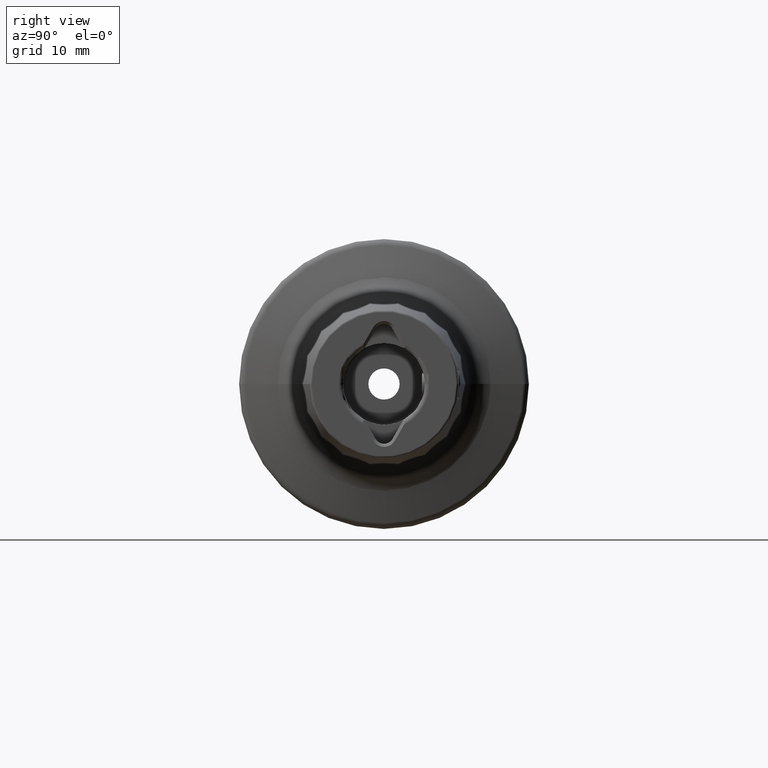
[diagram: clean part render]
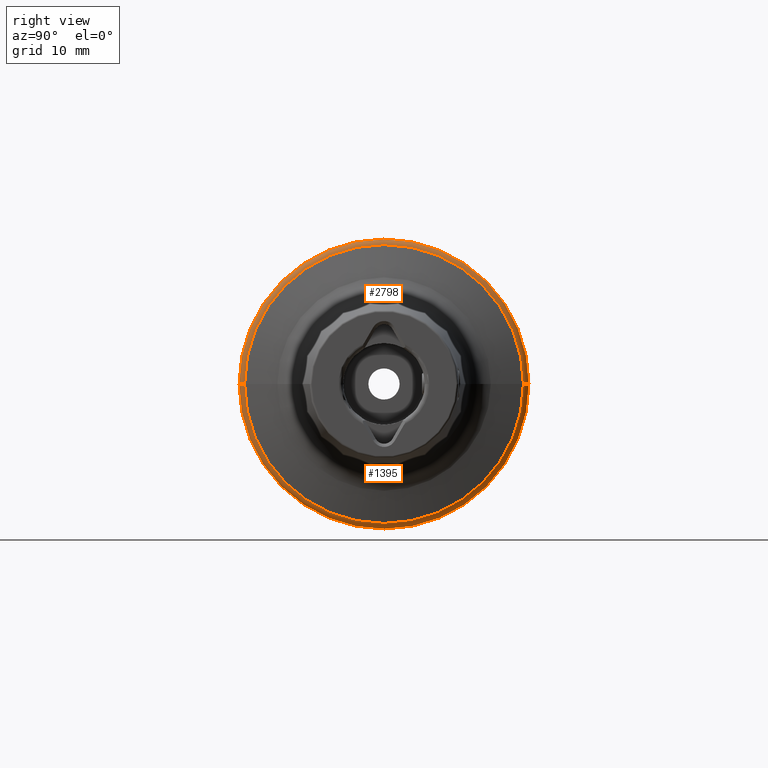
[diagram: same view with one multi-face feature highlighted, each face labeled with its STEP entity id]
A machine part, right view. The highlighted faces form ONE feature: a constant-radius fillet chain: 2 tangent blend faces with common blend radius 1 mm. The faces share edges in the B-rep.
Their STEP definitions:
[1] entity #1395 (Torus):
#63 = DIRECTION ( 'NONE',  ( 0.0000000000000000000, 1.000000000000000000, 0.0000000000000000000 ) ) ;
#68 = DIRECTION ( 'NONE',  ( -1.000000000000000000, -9.680999969516531400E-018, 0.0000000000000000000 ) ) ;
#72 = CARTESIAN_POINT ( 'NONE',  ( 9.232673012021040300, 0.0000000000000000000, 0.0000000000000000000 ) ) ;
#205 = AXIS2_PLACEMENT_3D ( 'NONE', #1915, #2008, #1885 ) ;
#326 = AXIS2_PLACEMENT_3D ( 'NONE', #3134, #3327, #3336 ) ;
#331 = EDGE_CURVE ( 'NONE', #1208, #3744, #2487, .T. ) ;
#419 = CIRCLE ( 'NONE', #1869, 19.49999999999999600 ) ;
#623 = CIRCLE ( 'NONE', #326, 1.000000000000000900 ) ;
#781 = CARTESIAN_POINT ( 'NONE',  ( 9.232673012021040300, 19.49999999999999600, 0.0000000000000000000 ) ) ;
#873 = ORIENTED_EDGE ( 'NONE', *, *, #4878, .F. ) ;
#898 = DIRECTION ( 'NONE',  ( -1.185580562521404400E-033, 1.224646799147353200E-016, 1.000000000000000000 ) ) ;
#982 = ORIENTED_EDGE ( 'NONE', *, *, #2829, .T. ) ;
#992 = ORIENTED_EDGE ( 'NONE', *, *, #3989, .F. ) ;
#1035 = ORIENTED_EDGE ( 'NONE', *, *, #1143, .F. ) ;
#1041 = ORIENTED_EDGE ( 'NONE', *, *, #331, .F. ) ;
#1083 = CARTESIAN_POINT ( 'NONE',  ( 10.19859883831012600, 18.75881904510244900, 2.297292769936912200E-015 ) ) ;
#1143 = EDGE_CURVE ( 'NONE', #4736, #1208, #419, .T. ) ;
#1208 = VERTEX_POINT ( 'NONE', #4428 ) ;
#1330 = CARTESIAN_POINT ( 'NONE',  ( 9.232673012021040300, 2.388061258337338500E-015, -19.49999999999999600 ) ) ;
#1395 = ADVANCED_FACE ( 'NONE', ( #5004 ), #4780, .T. ) ;
#1869 = AXIS2_PLACEMENT_3D ( 'NONE', #72, #68, #63 ) ;
#1870 = DIRECTION ( 'NONE',  ( 0.0000000000000000000, 1.000000000000000000, 0.0000000000000000000 ) ) ;
#1885 = DIRECTION ( 'NONE',  ( -9.680999969516531400E-018, 1.000000000000000000, 0.0000000000000000000 ) ) ;
#1888 = DIRECTION ( 'NONE',  ( -1.000000000000000000, -9.680999969516531400E-018, 0.0000000000000000000 ) ) ;
#1910 = CARTESIAN_POINT ( 'NONE',  ( 9.232673012021040300, 0.0000000000000000000, 0.0000000000000000000 ) ) ;
#1915 = CARTESIAN_POINT ( 'NONE',  ( 9.232673012021040300, 5.750388108659464100E-016, 0.0000000000000000000 ) ) ;
#2008 = DIRECTION ( 'NONE',  ( 1.000000000000000000, 9.680999969516531400E-018, -0.0000000000000000000 ) ) ;
#2233 = CIRCLE ( 'NONE', #4404, 18.75881904510251600 ) ;
#2427 = VERTEX_POINT ( 'NONE', #1083 ) ;
#2487 = CIRCLE ( 'NONE', #4964, 1.000000000000000900 ) ;
#2682 = EDGE_LOOP ( 'NONE', ( #1041, #1035, #992, #982, #873 ) ) ;
#2829 = EDGE_CURVE ( 'NONE', #3242, #2427, #623, .T. ) ;
#3134 = CARTESIAN_POINT ( 'NONE',  ( 9.232673012021040300, 18.49999999999999600, 0.0000000000000000000 ) ) ;
#3242 = VERTEX_POINT ( 'NONE', #781 ) ;
#3327 = DIRECTION ( 'NONE',  ( -0.0000000000000000000, 0.0000000000000000000, -1.000000000000000000 ) ) ;
#3336 = DIRECTION ( 'NONE',  ( -1.000000000000000000, 0.0000000000000000000, 0.0000000000000000000 ) ) ;
#3715 = CIRCLE ( 'NONE', #4891, 19.49999999999999600 ) ;
#3744 = VERTEX_POINT ( 'NONE', #3752 ) ;
#3752 = CARTESIAN_POINT ( 'NONE',  ( 10.19859883831012600, -18.75881904510244500, 0.0000000000000000000 ) ) ;
#3989 = EDGE_CURVE ( 'NONE', #3242, #4736, #3715, .T. ) ;
#4014 = CARTESIAN_POINT ( 'NONE',  ( 10.19859883831012600, 5.843899387608062400E-016, 0.0000000000000000000 ) ) ;
#4029 = DIRECTION ( 'NONE',  ( 1.000000000000000000, 1.936199993903306300E-017, -0.0000000000000000000 ) ) ;
#4046 = DIRECTION ( 'NONE',  ( 0.0000000000000000000, -1.000000000000000000, 1.224646799147353500E-016 ) ) ;
#4066 = DIRECTION ( 'NONE',  ( 0.0000000000000000000, -1.000000000000000000, 0.0000000000000000000 ) ) ;
#4187 = CARTESIAN_POINT ( 'NONE',  ( 9.232673012021040300, -18.49999999999999600, 2.265596578422603000E-015 ) ) ;
#4404 = AXIS2_PLACEMENT_3D ( 'NONE', #4014, #4029, #4066 ) ;
#4428 = CARTESIAN_POINT ( 'NONE',  ( 9.232673012021040300, -19.49999999999999600, 2.388061258337338900E-015 ) ) ;
#4736 = VERTEX_POINT ( 'NONE', #1330 ) ;
#4780 = TOROIDAL_SURFACE ( 'NONE', #205, 18.49999999999999600, 1.000000000000000000 ) ;
#4878 = EDGE_CURVE ( 'NONE', #3744, #2427, #2233, .T. ) ;
#4891 = AXIS2_PLACEMENT_3D ( 'NONE', #1910, #1888, #1870 ) ;
#4964 = AXIS2_PLACEMENT_3D ( 'NONE', #4187, #898, #4046 ) ;
#5004 = FACE_OUTER_BOUND ( 'NONE', #2682, .T. ) ;
[2] entity #2798 (Torus):
#37 = ORIENTED_EDGE ( 'NONE', *, *, #3718, .F. ) ;
#113 = AXIS2_PLACEMENT_3D ( 'NONE', #4023, #4010, #3995 ) ;
#147 = ORIENTED_EDGE ( 'NONE', *, *, #2829, .F. ) ;
#158 = ORIENTED_EDGE ( 'NONE', *, *, #3469, .F. ) ;
#304 = AXIS2_PLACEMENT_3D ( 'NONE', #995, #1020, #1028 ) ;
#326 = AXIS2_PLACEMENT_3D ( 'NONE', #3134, #3327, #3336 ) ;
#331 = EDGE_CURVE ( 'NONE', #1208, #3744, #2487, .T. ) ;
#362 = AXIS2_PLACEMENT_3D ( 'NONE', #3106, #3121, #3099 ) ;
#614 = TOROIDAL_SURFACE ( 'NONE', #362, 18.49999999999999600, 1.000000000000000000 ) ;
#623 = CIRCLE ( 'NONE', #326, 1.000000000000000900 ) ;
#669 = FACE_OUTER_BOUND ( 'NONE', #2079, .T. ) ;
#781 = CARTESIAN_POINT ( 'NONE',  ( 9.232673012021040300, 19.49999999999999600, 0.0000000000000000000 ) ) ;
#898 = DIRECTION ( 'NONE',  ( -1.185580562521404400E-033, 1.224646799147353200E-016, 1.000000000000000000 ) ) ;
#995 = CARTESIAN_POINT ( 'NONE',  ( 9.232673012021040300, 0.0000000000000000000, 0.0000000000000000000 ) ) ;
#1020 = DIRECTION ( 'NONE',  ( -1.000000000000000000, -9.680999969516531400E-018, 0.0000000000000000000 ) ) ;
#1028 = DIRECTION ( 'NONE',  ( 0.0000000000000000000, 1.000000000000000000, 0.0000000000000000000 ) ) ;
#1083 = CARTESIAN_POINT ( 'NONE',  ( 10.19859883831012600, 18.75881904510244900, 2.297292769936912200E-015 ) ) ;
#1208 = VERTEX_POINT ( 'NONE', #4428 ) ;
#1581 = ORIENTED_EDGE ( 'NONE', *, *, #3241, .F. ) ;
#2079 = EDGE_LOOP ( 'NONE', ( #1581, #3328, #158, #147, #37 ) ) ;
#2342 = CARTESIAN_POINT ( 'NONE',  ( 9.232673012021040300, 0.0000000000000000000, 19.49999999999999600 ) ) ;
#2427 = VERTEX_POINT ( 'NONE', #1083 ) ;
#2487 = CIRCLE ( 'NONE', #4964, 1.000000000000000900 ) ;
#2798 = ADVANCED_FACE ( 'NONE', ( #669 ), #614, .T. ) ;
#2829 = EDGE_CURVE ( 'NONE', #3242, #2427, #623, .T. ) ;
#2832 = AXIS2_PLACEMENT_3D ( 'NONE', #2981, #2940, #2865 ) ;
#2865 = DIRECTION ( 'NONE',  ( 0.0000000000000000000, -1.000000000000000000, 0.0000000000000000000 ) ) ;
#2940 = DIRECTION ( 'NONE',  ( 1.000000000000000000, 1.936199993903306300E-017, -0.0000000000000000000 ) ) ;
#2981 = CARTESIAN_POINT ( 'NONE',  ( 10.19859883831012600, 5.843899387608062400E-016, 0.0000000000000000000 ) ) ;
#3099 = DIRECTION ( 'NONE',  ( -9.680999969516531400E-018, 1.000000000000000000, 0.0000000000000000000 ) ) ;
#3106 = CARTESIAN_POINT ( 'NONE',  ( 9.232673012021040300, 5.750388108659464100E-016, 0.0000000000000000000 ) ) ;
#3121 = DIRECTION ( 'NONE',  ( 1.000000000000000000, 9.680999969516531400E-018, -0.0000000000000000000 ) ) ;
#3134 = CARTESIAN_POINT ( 'NONE',  ( 9.232673012021040300, 18.49999999999999600, 0.0000000000000000000 ) ) ;
#3241 = EDGE_CURVE ( 'NONE', #1208, #4552, #4926, .T. ) ;
#3242 = VERTEX_POINT ( 'NONE', #781 ) ;
#3327 = DIRECTION ( 'NONE',  ( -0.0000000000000000000, 0.0000000000000000000, -1.000000000000000000 ) ) ;
#3328 = ORIENTED_EDGE ( 'NONE', *, *, #331, .T. ) ;
#3336 = DIRECTION ( 'NONE',  ( -1.000000000000000000, 0.0000000000000000000, 0.0000000000000000000 ) ) ;
#3469 = EDGE_CURVE ( 'NONE', #2427, #3744, #4507, .T. ) ;
#3718 = EDGE_CURVE ( 'NONE', #4552, #3242, #4161, .T. ) ;
#3744 = VERTEX_POINT ( 'NONE', #3752 ) ;
#3752 = CARTESIAN_POINT ( 'NONE',  ( 10.19859883831012600, -18.75881904510244500, 0.0000000000000000000 ) ) ;
#3995 = DIRECTION ( 'NONE',  ( 0.0000000000000000000, 1.000000000000000000, 0.0000000000000000000 ) ) ;
#4010 = DIRECTION ( 'NONE',  ( -1.000000000000000000, -9.680999969516531400E-018, 0.0000000000000000000 ) ) ;
#4023 = CARTESIAN_POINT ( 'NONE',  ( 9.232673012021040300, 0.0000000000000000000, 0.0000000000000000000 ) ) ;
#4046 = DIRECTION ( 'NONE',  ( 0.0000000000000000000, -1.000000000000000000, 1.224646799147353500E-016 ) ) ;
#4161 = CIRCLE ( 'NONE', #113, 19.49999999999999600 ) ;
#4187 = CARTESIAN_POINT ( 'NONE',  ( 9.232673012021040300, -18.49999999999999600, 2.265596578422603000E-015 ) ) ;
#4428 = CARTESIAN_POINT ( 'NONE',  ( 9.232673012021040300, -19.49999999999999600, 2.388061258337338900E-015 ) ) ;
#4507 = CIRCLE ( 'NONE', #2832, 18.75881904510251600 ) ;
#4552 = VERTEX_POINT ( 'NONE', #2342 ) ;
#4926 = CIRCLE ( 'NONE', #304, 19.49999999999999600 ) ;
#4964 = AXIS2_PLACEMENT_3D ( 'NONE', #4187, #898, #4046 ) ;